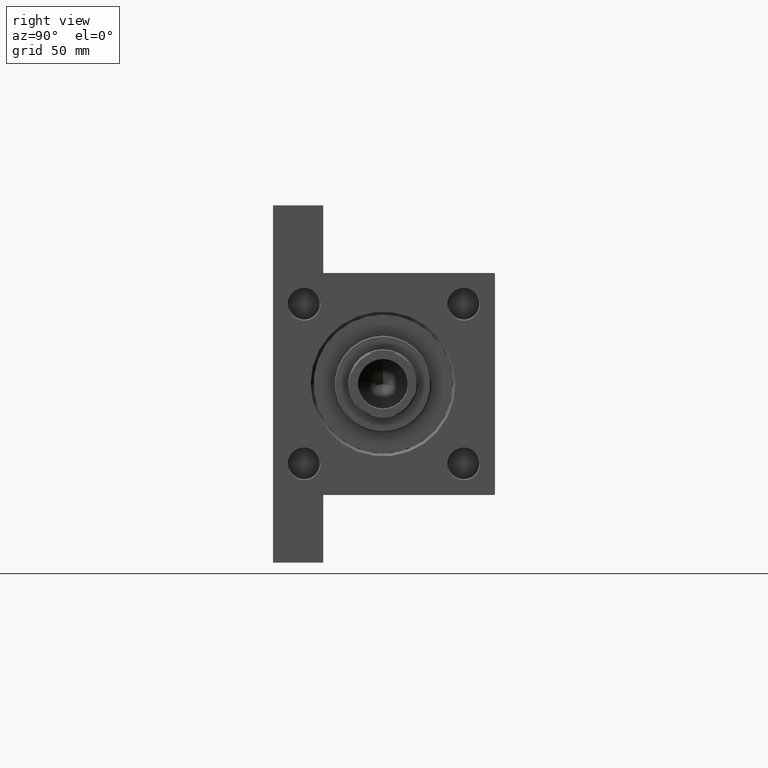
[diagram: clean part render]
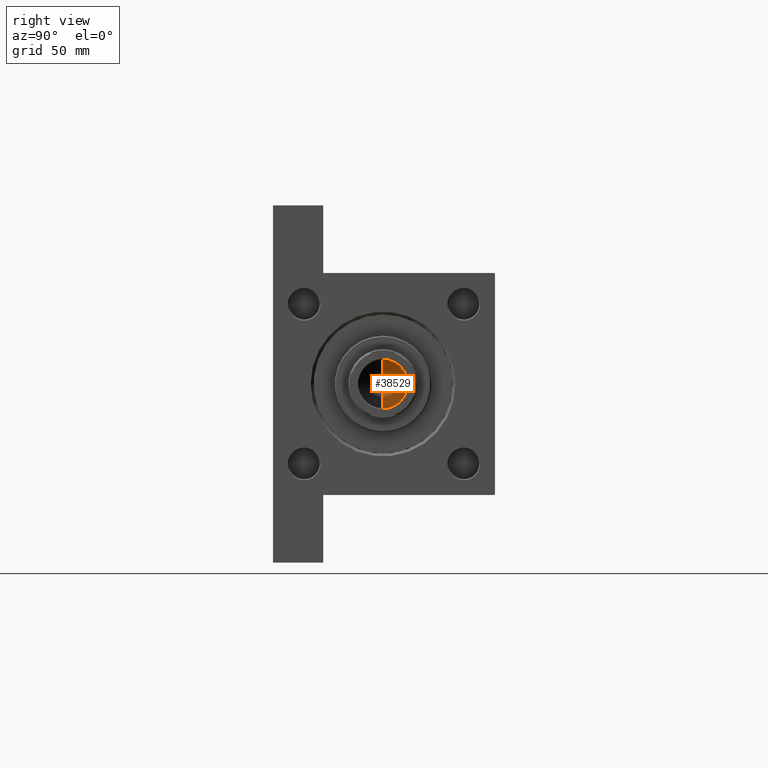
[diagram: same view with one face highlighted and labeled with its STEP entity id]
A machine part, right view. The second image highlights one B-rep face of the part: STEP entity #38529.
In plain terms, the highlighted conical surface has half-angle 59 deg.
Its self-contained STEP definition (entity closure, byte-faithful):
#85 = CARTESIAN_POINT ( 'NONE',  ( 12.74999999999998934, 0.000000000000000000, 201.0000000000000000 ) ) ;
#838 = LINE ( 'NONE', #15682, #38514 ) ;
#2458 = CIRCLE ( 'NONE', #19567, 12.74999999999998934 ) ;
#3154 = AXIS2_PLACEMENT_3D ( 'NONE', #28576, #13471, #42919 ) ;
#5718 = EDGE_CURVE ( 'NONE', #22419, #43165, #838, .T. ) ;
#9554 = DIRECTION ( 'NONE',  ( -0.8571673007021110013, 1.049727191138617093E-16, 0.5150380749100563760 ) ) ;
#10033 = LINE ( 'NONE', #17826, #39292 ) ;
#11142 = CARTESIAN_POINT ( 'NONE',  ( 0.000000000000000000, 0.000000000000000000, 201.0000000000000000 ) ) ;
#12031 = DIRECTION ( 'NONE',  ( 0.8571673007021110013, 0.000000000000000000, 0.5150380749100563760 ) ) ;
#13471 = DIRECTION ( 'NONE',  ( -0.000000000000000000, -0.000000000000000000, 1.000000000000000000 ) ) ;
#15682 = CARTESIAN_POINT ( 'NONE',  ( 12.74999999999998934, 0.000000000000000000, 201.0000000000000000 ) ) ;
#17826 = CARTESIAN_POINT ( 'NONE',  ( -12.74999999999998934, 1.561424668912873928E-15, 201.0000000000000000 ) ) ;
#19567 = AXIS2_PLACEMENT_3D ( 'NONE', #11142, #29660, #36954 ) ;
#20404 = EDGE_CURVE ( 'NONE', #22419, #46064, #10033, .T. ) ;
#22419 = VERTEX_POINT ( 'NONE', #38015 ) ;
#25629 = CONICAL_SURFACE ( 'NONE', #3154, 12.74999999999998934, 1.029744258676651869 ) ;
#28576 = CARTESIAN_POINT ( 'NONE',  ( 0.000000000000000000, 0.000000000000000000, 201.0000000000000000 ) ) ;
#29660 = DIRECTION ( 'NONE',  ( -0.000000000000000000, -0.000000000000000000, 1.000000000000000000 ) ) ;
#31343 = ORIENTED_EDGE ( 'NONE', *, *, #5718, .F. ) ;
#31988 = FACE_OUTER_BOUND ( 'NONE', #45337, .T. ) ;
#36954 = DIRECTION ( 'NONE',  ( 1.000000000000000000, 0.000000000000000000, 0.000000000000000000 ) ) ;
#38015 = CARTESIAN_POINT ( 'NONE',  ( -1.410643066818227497E-14, 0.000000000000000000, 193.3390271073985787 ) ) ;
#38514 = VECTOR ( 'NONE', #12031, 1000.000000000000000 ) ;
#38529 = ADVANCED_FACE ( 'NONE', ( #31988 ), #25629, .F. ) ;
#39292 = VECTOR ( 'NONE', #9554, 1000.000000000000000 ) ;
#39296 = ORIENTED_EDGE ( 'NONE', *, *, #20404, .T. ) ;
#42344 = CARTESIAN_POINT ( 'NONE',  ( -12.74999999999998934, 1.561424668912873928E-15, 201.0000000000000000 ) ) ;
#42633 = EDGE_CURVE ( 'NONE', #46064, #43165, #2458, .T. ) ;
#42919 = DIRECTION ( 'NONE',  ( 1.000000000000000000, 0.000000000000000000, 0.000000000000000000 ) ) ;
#43165 = VERTEX_POINT ( 'NONE', #85 ) ;
#45337 = EDGE_LOOP ( 'NONE', ( #31343, #39296, #48140 ) ) ;
#46064 = VERTEX_POINT ( 'NONE', #42344 ) ;
#48140 = ORIENTED_EDGE ( 'NONE', *, *, #42633, .T. ) ;